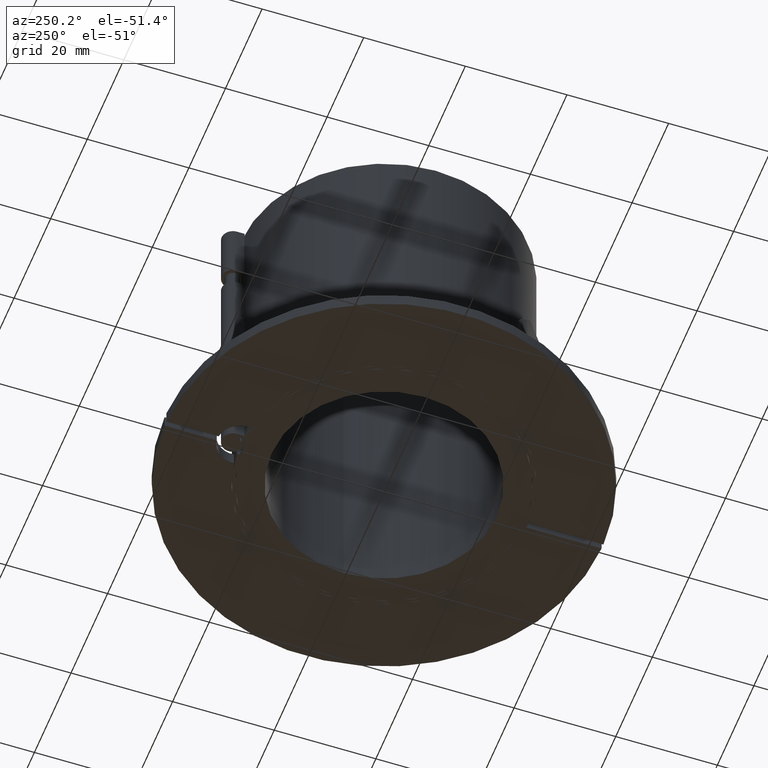
[diagram: clean part render]
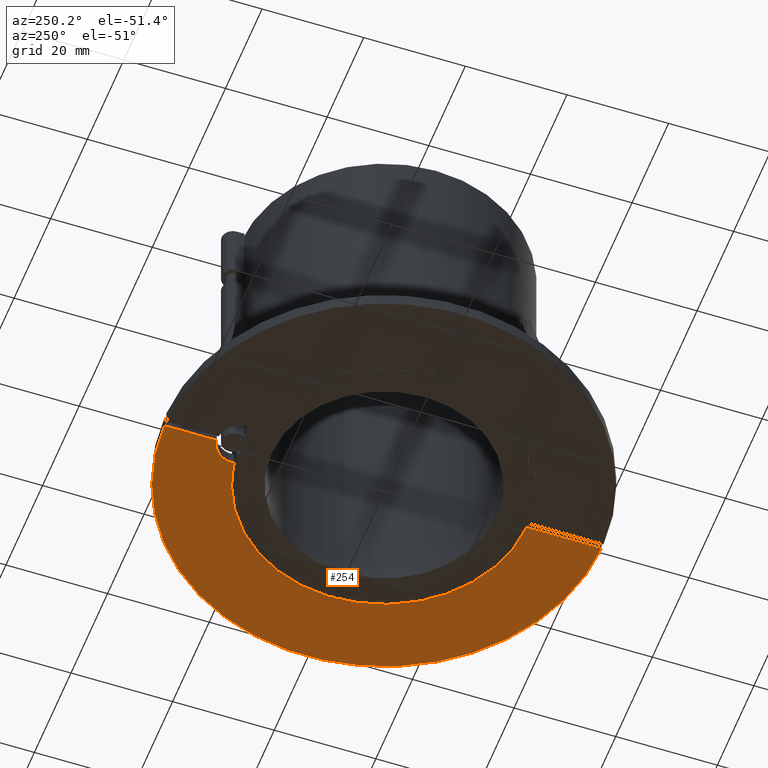
[diagram: same view with one face highlighted and labeled with its STEP entity id]
A machine part, auxiliary view. The second image highlights one B-rep face of the part: STEP entity #254.
In plain terms, the highlighted planar face has unit normal (0, 0, 1).
Its self-contained STEP definition (entity closure, byte-faithful):
#84=CARTESIAN_POINT('',(4.485704444706498,27.891592920353986,0.0));
#85=VERTEX_POINT('',#84);
#92=CARTESIAN_POINT('',(0.5,-28.245574874659575,0.0));
#93=VERTEX_POINT('',#92);
#94=CARTESIAN_POINT('',(0.0,0.0,0.0));
#95=DIRECTION('',(0.0,0.0,1.0));
#96=DIRECTION('',(0.017699115044248,-0.999843358395029,0.0));
#97=AXIS2_PLACEMENT_3D('',#94,#95,#96);
#98=CIRCLE('',#97,28.250000000000004);
#99=EDGE_CURVE('',#93,#85,#98,.T.);
#124=CARTESIAN_POINT('',(0.5,32.72213595499958,0.0));
#125=VERTEX_POINT('',#124);
#132=CARTESIAN_POINT('',(0.0,28.25,0.0));
#133=DIRECTION('',(0.0,0.0,1.0));
#134=DIRECTION('',(0.996823209934777,-0.079646017699114,0.0));
#135=AXIS2_PLACEMENT_3D('',#132,#133,#134);
#136=CIRCLE('',#135,4.499999999999998);
#137=EDGE_CURVE('',#85,#125,#136,.T.);
#156=CARTESIAN_POINT('',(0.5,42.997092924987385,0.0));
#157=VERTEX_POINT('',#156);
#164=CARTESIAN_POINT('',(0.5,32.72213595499958,0.0));
#165=DIRECTION('',(0.0,1.0,0.0));
#166=VECTOR('',#165,10.274956969987805);
#167=LINE('',#164,#166);
#168=EDGE_CURVE('',#125,#157,#167,.T.);
#188=CARTESIAN_POINT('',(0.5,-42.997092924987385,0.0));
#189=VERTEX_POINT('',#188);
#196=CARTESIAN_POINT('',(0.0,0.0,0.0));
#197=DIRECTION('',(0.0,0.0,-1.0));
#198=DIRECTION('',(-0.011627906976744,0.999932393604358,0.0));
#199=AXIS2_PLACEMENT_3D('',#196,#197,#198);
#200=CIRCLE('',#199,43.0);
#201=EDGE_CURVE('',#157,#189,#200,.T.);
#219=CARTESIAN_POINT('',(0.5,-42.997092924987385,0.0));
#220=DIRECTION('',(0.0,1.0,0.0));
#221=VECTOR('',#220,14.751518050327807);
#222=LINE('',#219,#221);
#223=EDGE_CURVE('',#189,#93,#222,.T.);
#242=CARTESIAN_POINT('',(19.313761771270954,-0.10482015845237,0.0));
#243=DIRECTION('',(0.0,0.0,1.0));
#244=DIRECTION('',(1.0,0.0,0.0));
#245=AXIS2_PLACEMENT_3D('',#242,#243,#244);
#246=PLANE('',#245);
#247=ORIENTED_EDGE('',*,*,#223,.T.);
#248=ORIENTED_EDGE('',*,*,#99,.T.);
#249=ORIENTED_EDGE('',*,*,#137,.T.);
#250=ORIENTED_EDGE('',*,*,#168,.T.);
#251=ORIENTED_EDGE('',*,*,#201,.T.);
#252=EDGE_LOOP('',(#247,#248,#249,#250,#251));
#253=FACE_OUTER_BOUND('',#252,.T.);
#254=ADVANCED_FACE('',(#253),#246,.F.);